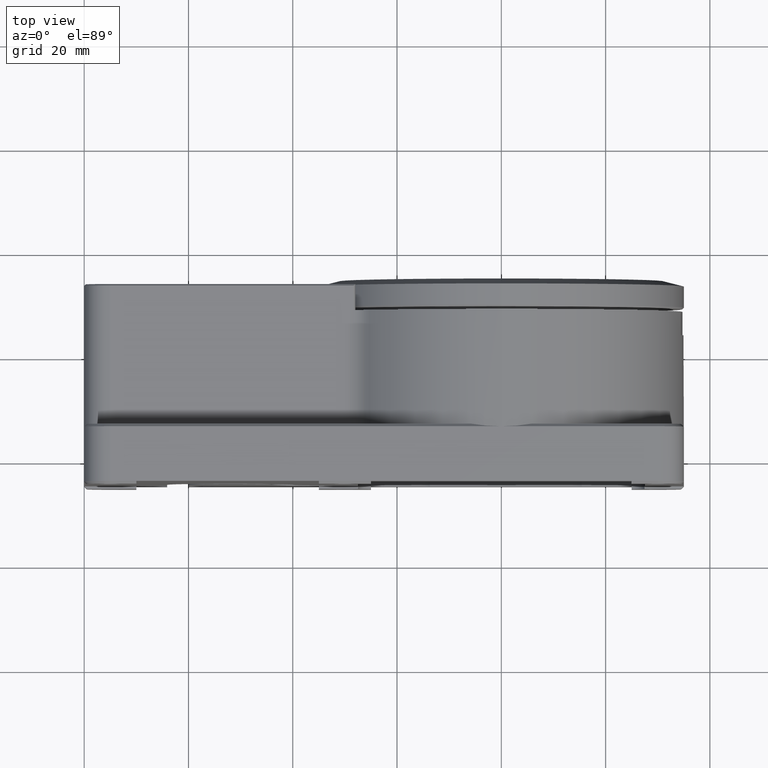
[diagram: clean part render]
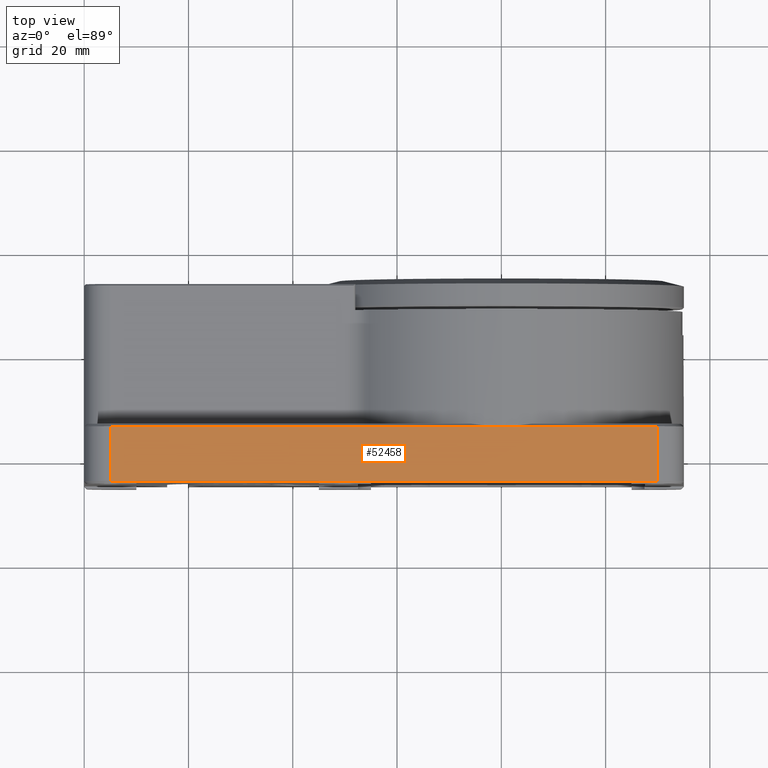
[diagram: same view with one face highlighted and labeled with its STEP entity id]
A machine part, top view. The second image highlights one B-rep face of the part: STEP entity #52458.
In plain terms, the highlighted planar face has unit normal (0, 0, 1).
Its self-contained STEP definition (entity closure, byte-faithful):
#9 = CARTESIAN_POINT ( 'NONE',  ( 29.99999997181831900, -24.50003141658317000, 35.00004057882338800 ) ) ;
#474 = CARTESIAN_POINT ( 'NONE',  ( -70.00000000000002800, -24.50000000034149400, 35.00000000000000000 ) ) ;
#624 = CARTESIAN_POINT ( 'NONE',  ( -25.00000000000000700, -24.49999999999999300, 35.00000000000000000 ) ) ;
#2061 = DIRECTION ( 'NONE',  ( 1.000000000000000000, 0.0000000000000000000, -0.0000000000000000000 ) ) ;
#2602 = CARTESIAN_POINT ( 'NONE',  ( -35.00000000000000000, -24.50000000017074700, 35.00000000000000000 ) ) ;
#3033 = CARTESIAN_POINT ( 'NONE',  ( -77.10000000000002300, -24.71000000000000400, 35.00000000000000000 ) ) ;
#3399 = LINE ( 'NONE', #81422, #70073 ) ;
#3617 = VERTEX_POINT ( 'NONE', #10418 ) ;
#3716 = VECTOR ( 'NONE', #80162, 1000.000000000000000 ) ;
#3980 = VERTEX_POINT ( 'NONE', #15154 ) ;
#5821 = VERTEX_POINT ( 'NONE', #77243 ) ;
#6577 = CARTESIAN_POINT ( 'NONE',  ( 25.00000000000001400, -24.49999999999999300, 35.00000000000000000 ) ) ;
#9023 = ORIENTED_EDGE ( 'NONE', *, *, #33919, .T. ) ;
#9153 = VECTOR ( 'NONE', #43684, 1000.000000000000000 ) ;
#9512 = LINE ( 'NONE', #39699, #70257 ) ;
#9567 = DIRECTION ( 'NONE',  ( 1.000000000000000000, 0.0000000000000000000, -0.0000000000000000000 ) ) ;
#10418 = CARTESIAN_POINT ( 'NONE',  ( -74.99999997306422000, -24.50003499119096200, 35.00003874174278500 ) ) ;
#10678 = VERTEX_POINT ( 'NONE', #2602 ) ;
#10734 = LINE ( 'NONE', #13222, #31362 ) ;
#10760 = EDGE_CURVE ( 'NONE', #3980, #72184, #75726, .T. ) ;
#12749 = ORIENTED_EDGE ( 'NONE', *, *, #36992, .T. ) ;
#12787 = LINE ( 'NONE', #27695, #77475 ) ;
#13120 = LINE ( 'NONE', #18447, #9153 ) ;
#13222 = CARTESIAN_POINT ( 'NONE',  ( -77.10000000000002300, -24.50000000068299500, 35.00000000000000000 ) ) ;
#15154 = CARTESIAN_POINT ( 'NONE',  ( -6.409654000847203100E-015, -13.99999999999973200, 34.99999999999990800 ) ) ;
#18065 = ORIENTED_EDGE ( 'NONE', *, *, #28763, .T. ) ;
#18447 = CARTESIAN_POINT ( 'NONE',  ( -77.10000000000002300, -24.49999999999999600, 35.00000000000000000 ) ) ;
#20410 = LINE ( 'NONE', #36362, #3716 ) ;
#21472 = ORIENTED_EDGE ( 'NONE', *, *, #45430, .T. ) ;
#21977 = DIRECTION ( 'NONE',  ( 0.0000000000000000000, 0.0000000000000000000, 1.000000000000000000 ) ) ;
#26073 = LINE ( 'NONE', #73141, #38872 ) ;
#26634 = CARTESIAN_POINT ( 'NONE',  ( 29.99999991826891200, -13.99999999952943100, 34.99999999977807600 ) ) ;
#27695 = CARTESIAN_POINT ( 'NONE',  ( -77.10000000000002300, -24.49999999999999300, 35.00000000000000000 ) ) ;
#28128 = ORIENTED_EDGE ( 'NONE', *, *, #36070, .T. ) ;
#28763 = EDGE_CURVE ( 'NONE', #3617, #63203, #9512, .T. ) ;
#30263 = LINE ( 'NONE', #32703, #61548 ) ;
#31362 = VECTOR ( 'NONE', #57013, 1000.000000000000000 ) ;
#32703 = CARTESIAN_POINT ( 'NONE',  ( -77.10000000000002300, -24.49999999999999300, 35.00000000000000000 ) ) ;
#33919 = EDGE_CURVE ( 'NONE', #66128, #36054, #12787, .T. ) ;
#34051 = PLANE ( 'NONE',  #41601 ) ;
#36054 = VERTEX_POINT ( 'NONE', #6577 ) ;
#36070 = EDGE_CURVE ( 'NONE', #63203, #10678, #10734, .T. ) ;
#36362 = CARTESIAN_POINT ( 'NONE',  ( -77.10000000000002300, -14.00000000000000500, 35.00000000000000000 ) ) ;
#36992 = EDGE_CURVE ( 'NONE', #3980, #5821, #20410, .T. ) ;
#37536 = ORIENTED_EDGE ( 'NONE', *, *, #56935, .T. ) ;
#37634 = DIRECTION ( 'NONE',  ( 0.0000000000000000000, -1.000000000000000000, -0.0000000000000000000 ) ) ;
#38872 = VECTOR ( 'NONE', #79442, 1000.000000000000000 ) ;
#39009 = DIRECTION ( 'NONE',  ( 1.000000000000000000, 0.0000000000000000000, -0.0000000000000000000 ) ) ;
#39444 = EDGE_LOOP ( 'NONE', ( #53206, #12749, #80266, #18065, #28128, #46296, #9023, #21472, #37536 ) ) ;
#39699 = CARTESIAN_POINT ( 'NONE',  ( -77.10000000000002300, -24.49999999999999300, 35.00000000000000000 ) ) ;
#41601 = AXIS2_PLACEMENT_3D ( 'NONE', #3033, #21977, #65754 ) ;
#42424 = VECTOR ( 'NONE', #62347, 1000.000000000000000 ) ;
#43684 = DIRECTION ( 'NONE',  ( 1.000000000000000000, 0.0000000000000000000, -0.0000000000000000000 ) ) ;
#43781 = CARTESIAN_POINT ( 'NONE',  ( 30.60000000000000100, -13.99999999999952700, 34.99999999999952400 ) ) ;
#45430 = EDGE_CURVE ( 'NONE', #36054, #49759, #30263, .T. ) ;
#46296 = ORIENTED_EDGE ( 'NONE', *, *, #78561, .T. ) ;
#49759 = VERTEX_POINT ( 'NONE', #9 ) ;
#52458 = ADVANCED_FACE ( 'NONE', ( #76762 ), #34051, .T. ) ;
#53206 = ORIENTED_EDGE ( 'NONE', *, *, #10760, .F. ) ;
#56935 = EDGE_CURVE ( 'NONE', #49759, #72184, #26073, .T. ) ;
#57013 = DIRECTION ( 'NONE',  ( 1.000000000000000000, 0.0000000000000000000, -0.0000000000000000000 ) ) ;
#61548 = VECTOR ( 'NONE', #39009, 1000.000000000000000 ) ;
#62347 = DIRECTION ( 'NONE',  ( 1.000000000000000000, 0.0000000000000000000, -0.0000000000000000000 ) ) ;
#63203 = VERTEX_POINT ( 'NONE', #474 ) ;
#64926 = EDGE_CURVE ( 'NONE', #5821, #3617, #3399, .T. ) ;
#65754 = DIRECTION ( 'NONE',  ( 1.000000000000000000, 0.0000000000000000000, -0.0000000000000000000 ) ) ;
#66128 = VERTEX_POINT ( 'NONE', #624 ) ;
#70073 = VECTOR ( 'NONE', #37634, 1000.000000000000000 ) ;
#70257 = VECTOR ( 'NONE', #2061, 1000.000000000000000 ) ;
#72184 = VERTEX_POINT ( 'NONE', #26634 ) ;
#73141 = CARTESIAN_POINT ( 'NONE',  ( 29.99999996924315600, -24.71000000000000400, 35.00000000000000000 ) ) ;
#75726 = LINE ( 'NONE', #43781, #42424 ) ;
#76762 = FACE_OUTER_BOUND ( 'NONE', #39444, .T. ) ;
#77243 = CARTESIAN_POINT ( 'NONE',  ( -74.99999994389433800, -13.99995290903498500, 35.00004347658742900 ) ) ;
#77475 = VECTOR ( 'NONE', #9567, 1000.000000000000000 ) ;
#78561 = EDGE_CURVE ( 'NONE', #10678, #66128, #13120, .T. ) ;
#79442 = DIRECTION ( 'NONE',  ( -0.0000000000000000000, 1.000000000000000000, 0.0000000000000000000 ) ) ;
#80162 = DIRECTION ( 'NONE',  ( -1.000000000000000000, 0.0000000000000000000, 0.0000000000000000000 ) ) ;
#80266 = ORIENTED_EDGE ( 'NONE', *, *, #64926, .T. ) ;
#81422 = CARTESIAN_POINT ( 'NONE',  ( -74.99999994972810700, -24.71000000000000400, 35.00000000000000000 ) ) ;